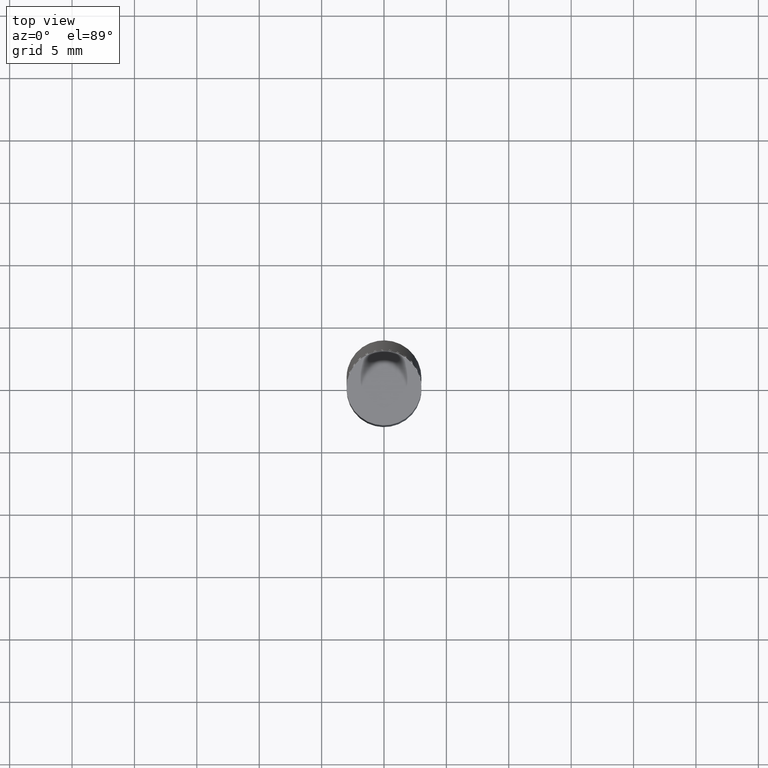
[diagram: clean part render]
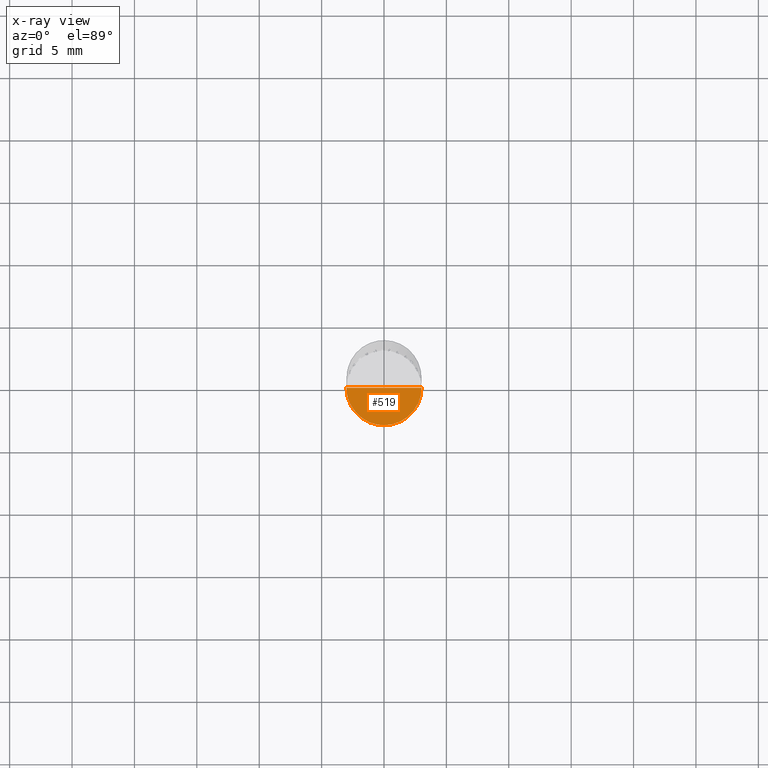
[diagram: x-ray — body ghosted, one internal face saturated and labeled with its STEP entity id]
A machine part, top view, then the same camera in x-ray: the body is ghosted and one INTERNAL B-rep face — a face not visible from any outside direction — is saturated and labeled: STEP entity #519.
In plain terms, the highlighted face is a freeform B-spline surface patch.
Its self-contained STEP definition (entity closure, byte-faithful):
#371=CARTESIAN_POINT('',(3.0,0.0,-5.0));
#375=CARTESIAN_POINT('',(-3.0,0.0,-5.0));
#376=CARTESIAN_POINT('',(0.0,0.0,-5.0));
#383=CARTESIAN_POINT('',(-3.0,-3.0,-5.0));
#384=CARTESIAN_POINT('',(0.0,-3.0,-5.0));
#385=CARTESIAN_POINT('',(3.0,-3.0,-5.0));
#504=(
BOUNDED_SURFACE()
B_SPLINE_SURFACE(1,2,(
(#375,#383,#384,#385,#371),
(#376,#376,#376,#376,#376)
), .UNSPECIFIED.,.F.,.F.,.F.)
B_SPLINE_SURFACE_WITH_KNOTS((2,2),(3,2,3),(
0.0,1.0),(
0.0,0.5,1.0), .UNSPECIFIED.)
GEOMETRIC_REPRESENTATION_ITEM()
RATIONAL_B_SPLINE_SURFACE(((1.0,0.707106781187,1.0,0.707106781187,1.0),
(1.0,0.707106781187,1.0,0.707106781187,1.0)
))
REPRESENTATION_ITEM('')
SURFACE()
);
#505=(
BOUNDED_CURVE()
B_SPLINE_CURVE(2,(#371,#385,#384,#383,#375),.UNSPECIFIED.,.F.,.F.)
B_SPLINE_CURVE_WITH_KNOTS((3,2,3),
(0.0,0.5,1.0),.UNSPECIFIED.)
CURVE()
GEOMETRIC_REPRESENTATION_ITEM()
RATIONAL_B_SPLINE_CURVE((1.0,0.707106781187,1.0,0.707106781187,1.0))
REPRESENTATION_ITEM('')
);
#506=(
BOUNDED_CURVE()
B_SPLINE_CURVE(1,(#375,#376),.UNSPECIFIED.,.F.,.F.)
B_SPLINE_CURVE_WITH_KNOTS((2,2),
(0.0,1.0),.UNSPECIFIED.)
CURVE()
GEOMETRIC_REPRESENTATION_ITEM()
RATIONAL_B_SPLINE_CURVE((1.0,1.0))
REPRESENTATION_ITEM('')
);
#507=(
BOUNDED_CURVE()
B_SPLINE_CURVE(1,(#376,#371),.UNSPECIFIED.,.F.,.F.)
B_SPLINE_CURVE_WITH_KNOTS((2,2),
(0.0,1.0),.UNSPECIFIED.)
CURVE()
GEOMETRIC_REPRESENTATION_ITEM()
RATIONAL_B_SPLINE_CURVE((1.0,1.0))
REPRESENTATION_ITEM('')
);
#508=VERTEX_POINT('',#371);
#509=VERTEX_POINT('',#375);
#510=VERTEX_POINT('',#376);
#511=EDGE_CURVE('',#508,#509,#505,.T.);
#512=EDGE_CURVE('',#509,#510,#506,.T.);
#513=EDGE_CURVE('',#510,#508,#507,.T.);
#514=ORIENTED_EDGE('',*,*,#511,.T.);
#515=ORIENTED_EDGE('',*,*,#512,.T.);
#516=ORIENTED_EDGE('',*,*,#513,.T.);
#517=EDGE_LOOP('',(#514,#515,#516));
#518=FACE_OUTER_BOUND('',#517,.T.);
#519=ADVANCED_FACE('',(#518),#504,.T.);